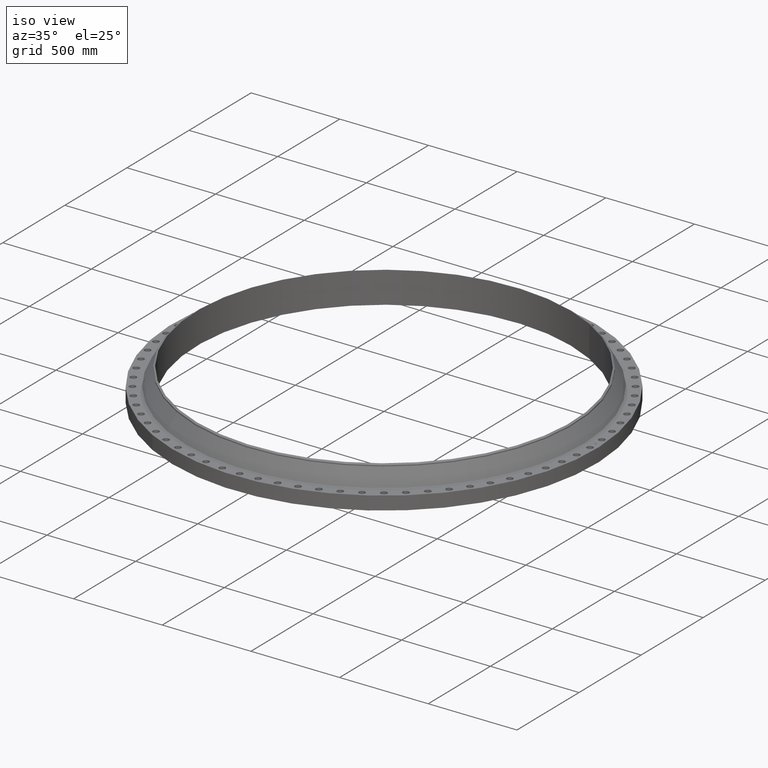
[diagram: clean part render]
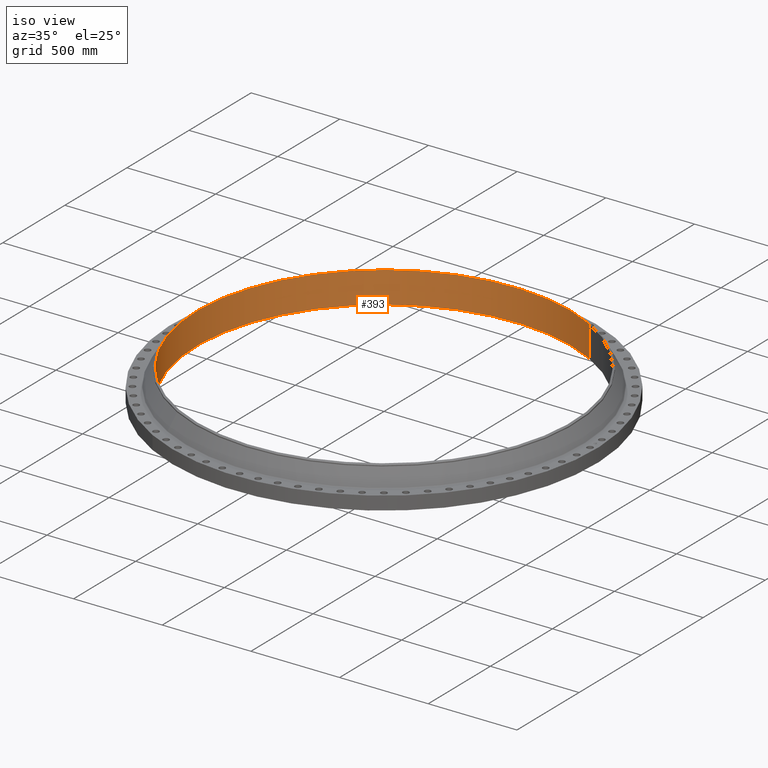
[diagram: tour spotlight — one face highlighted and labeled with its STEP entity id]
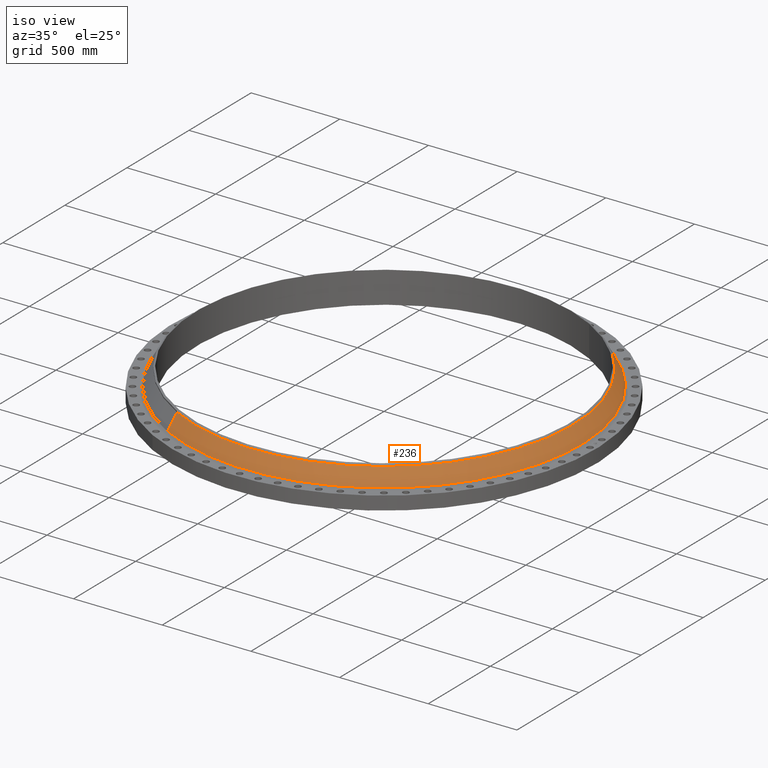
[diagram: tour spotlight — one face highlighted and labeled with its STEP entity id]
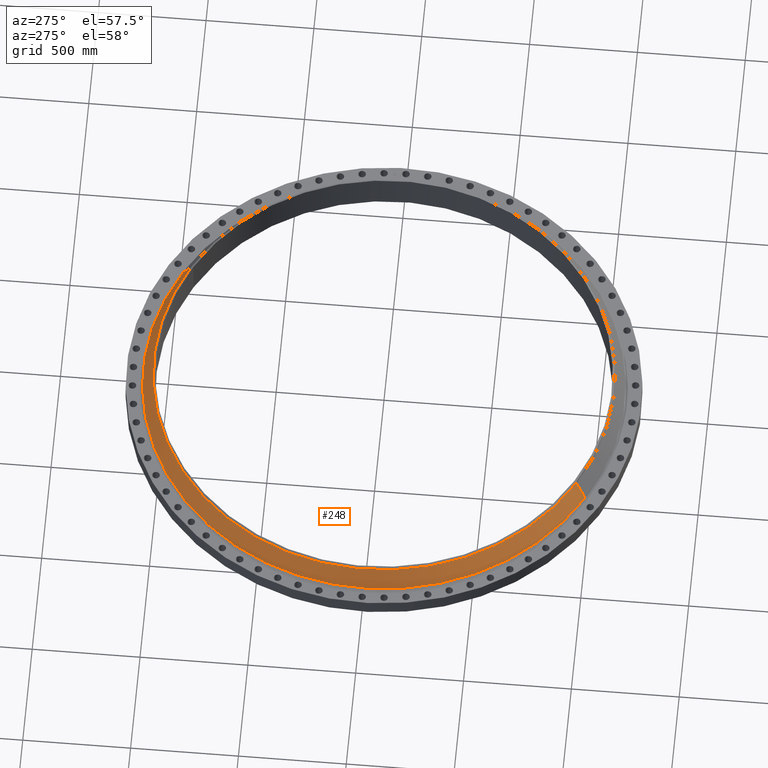
[diagram: tour spotlight — one face highlighted and labeled with its STEP entity id]
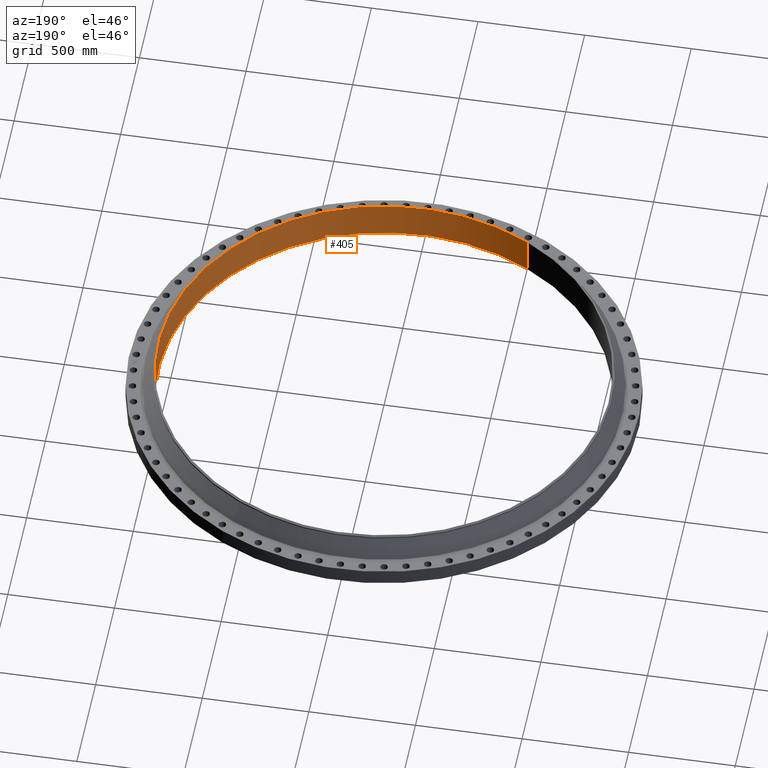
[diagram: tour spotlight — one face highlighted and labeled with its STEP entity id]
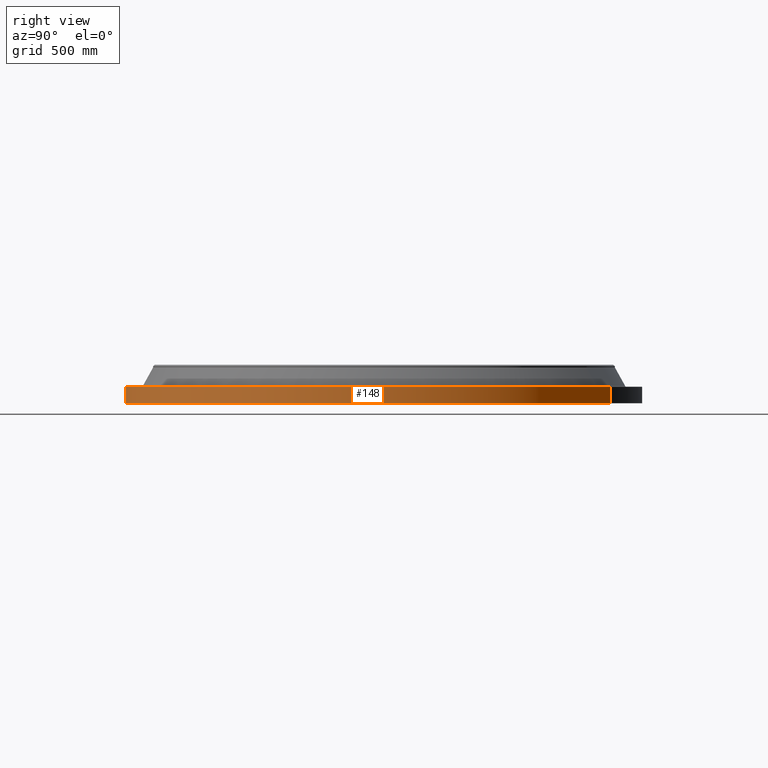
[diagram: tour spotlight — one face highlighted and labeled with its STEP entity id]
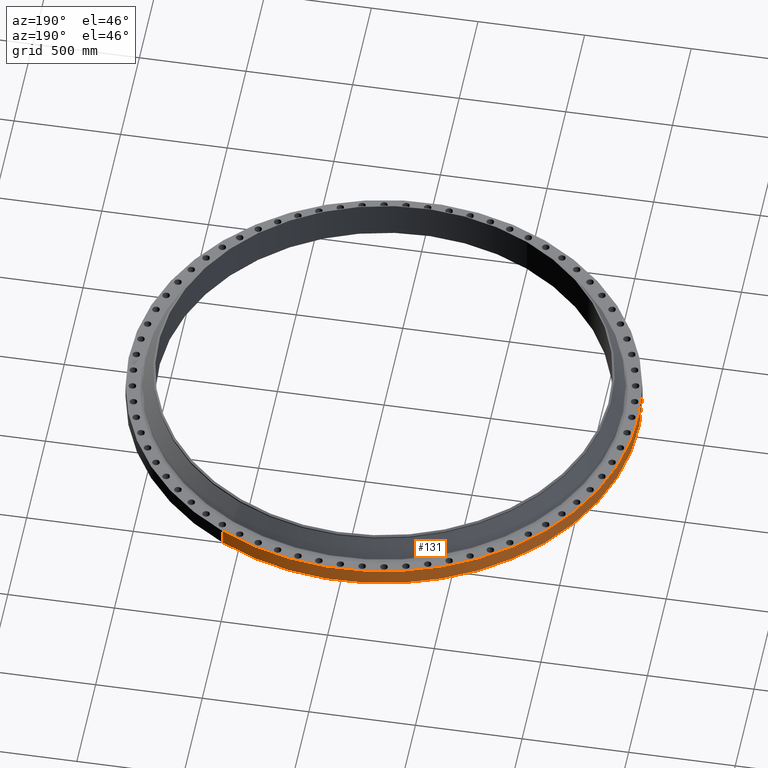
[diagram: tour spotlight — one face highlighted and labeled with its STEP entity id]
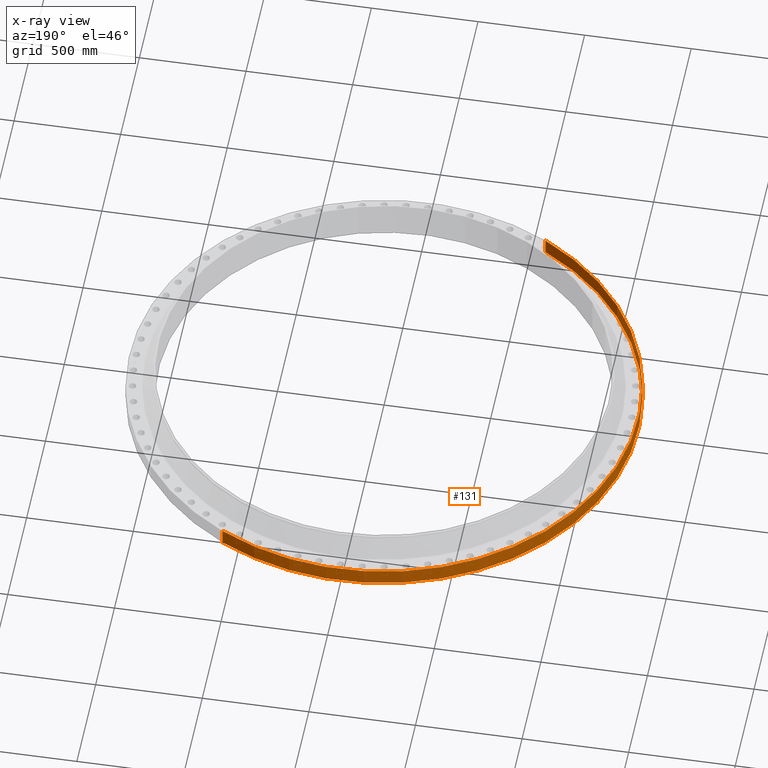
[diagram: x-ray of the same camera — body ghosted, this tour face saturated]
A machine part: a face-by-face anatomy tour. The part has 544 B-rep faces; the first image is the clean iso view, then the 6 largest visible faces are spotlighted one at a time (largest first), each with its STEP entity span.

Face 1 — iso view, entity #393. In plain terms, the highlighted cylindrical surface (partial cylindrical patch) has radius 1057.28 mm, axis along (0, 0, -1).
Definition (entity closure, byte-faithful):
#346=AXIS2_PLACEMENT_3D('Circle Axis2P3D',#344,#345,$) ;
#366=AXIS2_PLACEMENT_3D('Cylinder Axis2P3D',#363,#364,#365) ;
#377=AXIS2_PLACEMENT_3D('Circle Axis2P3D',#375,#376,$) ;
#344=CARTESIAN_POINT('Axis2P3D Location',(0.,1.1189649382E-015,7.00000000003)) ;
#348=CARTESIAN_POINT('Vertex',(-19.9560880445,-36.5293741388,7.00000000003)) ;
#350=CARTESIAN_POINT('Vertex',(19.9560880445,36.5293741388,7.00000000003)) ;
#363=CARTESIAN_POINT('Axis2P3D Location',(0.,0.,3.55000000001)) ;
#368=CARTESIAN_POINT('Line Origine',(-19.9560880445,-36.5293741388,3.50000000001)) ;
#372=CARTESIAN_POINT('Vertex',(-19.9560880445,-36.5293741388,-6.93758261687E-014)) ;
#375=CARTESIAN_POINT('Axis2P3D Location',(0.,0.,-6.93758261687E-014)) ;
#379=CARTESIAN_POINT('Vertex',(19.9560880445,36.5293741388,-6.93758261687E-014)) ;
#382=CARTESIAN_POINT('Line Origine',(19.9560880445,36.5293741388,3.50000000001)) ;
#345=DIRECTION('Axis2P3D Direction',(0.,-0.,-0.0393700787402)) ;
#364=DIRECTION('Axis2P3D Direction',(0.,0.,-0.0393700787402)) ;
#365=DIRECTION('Axis2P3D XDirection',(0.0188750212049,0.0345504945626,0.)) ;
#369=DIRECTION('Vector Direction',(0.,0.,-0.0393700787402)) ;
#376=DIRECTION('Axis2P3D Direction',(0.,0.,-0.0393700787402)) ;
#383=DIRECTION('Vector Direction',(0.,0.,-0.0393700787402)) ;
#370=VECTOR('Line Direction',#369,0.0393700787402) ;
#384=VECTOR('Line Direction',#383,0.0393700787402) ;
#388=ORIENTED_EDGE('',*,*,#374,.T.) ;
#389=ORIENTED_EDGE('',*,*,#381,.T.) ;
#390=ORIENTED_EDGE('',*,*,#386,.F.) ;
#391=ORIENTED_EDGE('',*,*,#352,.F.) ;
#393=ADVANCED_FACE('PartBody',(#392),#367,.F.) ;
#347=CIRCLE('generated circle',#346,41.6250000002) ;
#378=CIRCLE('generated circle',#377,41.6250000002) ;
#367=CYLINDRICAL_SURFACE('generated cylinder',#366,41.6250000002) ;
#352=EDGE_CURVE('',#349,#351,#347,.T.) ;
#374=EDGE_CURVE('',#349,#373,#371,.T.) ;
#381=EDGE_CURVE('',#373,#380,#378,.T.) ;
#386=EDGE_CURVE('',#351,#380,#385,.T.) ;
#387=EDGE_LOOP('',(#388,#389,#390,#391)) ;
#392=FACE_OUTER_BOUND('',#387,.T.) ;
#371=LINE('Line',#368,#370) ;
#385=LINE('Line',#382,#384) ;
#349=VERTEX_POINT('',#348) ;
#351=VERTEX_POINT('',#350) ;
#373=VERTEX_POINT('',#372) ;
#380=VERTEX_POINT('',#379) ;

Face 2 — iso view, entity #236. In plain terms, the highlighted conical surface has half-angle 29.577 deg.
Definition (entity closure, byte-faithful):
#172=AXIS2_PLACEMENT_3D('Circle Axis2P3D',#170,#171,$) ;
#209=AXIS2_PLACEMENT_3D('Cone Axis2P3D',#206,#207,#208) ;
#220=AXIS2_PLACEMENT_3D('Circle Axis2P3D',#218,#219,$) ;
#167=CARTESIAN_POINT('Vertex',(21.0602758688,38.5505763936,3.12660339613)) ;
#170=CARTESIAN_POINT('Axis2P3D Location',(0.,0.,3.12660339613)) ;
#174=CARTESIAN_POINT('Vertex',(-21.0602758688,-38.5505763936,3.12660339613)) ;
#206=CARTESIAN_POINT('Axis2P3D Location',(0.,0.,6.52398984384)) ;
#211=CARTESIAN_POINT('Line Origine',(20.5980742451,37.7045219966,4.82529661998)) ;
#215=CARTESIAN_POINT('Vertex',(20.1358726215,36.8584675995,6.52398984384)) ;
#218=CARTESIAN_POINT('Axis2P3D Location',(0.,0.,6.52398984384)) ;
#222=CARTESIAN_POINT('Vertex',(-20.1358726215,-36.8584675995,6.52398984384)) ;
#225=CARTESIAN_POINT('Line Origine',(-20.5980742451,-37.7045219966,4.82529661998)) ;
#171=DIRECTION('Axis2P3D Direction',(0.,0.,-0.0393700787402)) ;
#207=DIRECTION('Axis2P3D Direction',(0.,0.,-0.0393700787402)) ;
#208=DIRECTION('Axis2P3D XDirection',(-0.0188750212049,-0.0345504945626,0.)) ;
#212=DIRECTION('Vector Direction',(0.00931645405992,0.0170536547666,-0.0342400298314)) ;
#219=DIRECTION('Axis2P3D Direction',(0.,0.,-0.0393700787402)) ;
#226=DIRECTION('Vector Direction',(-0.00931645405992,-0.0170536547666,-0.0342400298314)) ;
#213=VECTOR('Line Direction',#212,0.0393700787402) ;
#227=VECTOR('Line Direction',#226,0.0393700787402) ;
#231=ORIENTED_EDGE('',*,*,#176,.F.) ;
#232=ORIENTED_EDGE('',*,*,#217,.T.) ;
#233=ORIENTED_EDGE('',*,*,#224,.T.) ;
#234=ORIENTED_EDGE('',*,*,#229,.F.) ;
#236=ADVANCED_FACE('PartBody',(#235),#210,.T.) ;
#173=CIRCLE('generated circle',#172,43.9281476954) ;
#221=CIRCLE('generated circle',#220,42.0000000002) ;
#210=CONICAL_SURFACE('Cone',#209,42.0000000002,0.516208704301) ;
#176=EDGE_CURVE('',#168,#175,#173,.T.) ;
#217=EDGE_CURVE('',#168,#216,#214,.F.) ;
#224=EDGE_CURVE('',#216,#223,#221,.T.) ;
#229=EDGE_CURVE('',#175,#223,#228,.F.) ;
#230=EDGE_LOOP('',(#231,#232,#233,#234)) ;
#235=FACE_OUTER_BOUND('',#230,.T.) ;
#214=LINE('Line',#211,#213) ;
#228=LINE('Line',#225,#227) ;
#168=VERTEX_POINT('',#167) ;
#175=VERTEX_POINT('',#174) ;
#216=VERTEX_POINT('',#215) ;
#223=VERTEX_POINT('',#222) ;

Face 3 — auxiliary view, entity #248. In plain terms, the highlighted conical surface has half-angle 29.577 deg.
Definition (entity closure, byte-faithful):
#196=AXIS2_PLACEMENT_3D('Circle Axis2P3D',#194,#195,$) ;
#209=AXIS2_PLACEMENT_3D('Cone Axis2P3D',#206,#207,#208) ;
#239=AXIS2_PLACEMENT_3D('Circle Axis2P3D',#237,#238,$) ;
#167=CARTESIAN_POINT('Vertex',(21.0602758688,38.5505763936,3.12660339613)) ;
#174=CARTESIAN_POINT('Vertex',(-21.0602758688,-38.5505763936,3.12660339613)) ;
#194=CARTESIAN_POINT('Axis2P3D Location',(0.,0.,3.12660339613)) ;
#206=CARTESIAN_POINT('Axis2P3D Location',(0.,0.,6.52398984384)) ;
#211=CARTESIAN_POINT('Line Origine',(20.5980742451,37.7045219966,4.82529661998)) ;
#215=CARTESIAN_POINT('Vertex',(20.1358726215,36.8584675995,6.52398984384)) ;
#222=CARTESIAN_POINT('Vertex',(-20.1358726215,-36.8584675995,6.52398984384)) ;
#225=CARTESIAN_POINT('Line Origine',(-20.5980742451,-37.7045219966,4.82529661998)) ;
#237=CARTESIAN_POINT('Axis2P3D Location',(0.,0.,6.52398984384)) ;
#195=DIRECTION('Axis2P3D Direction',(0.,0.,-0.0393700787402)) ;
#207=DIRECTION('Axis2P3D Direction',(0.,0.,-0.0393700787402)) ;
#208=DIRECTION('Axis2P3D XDirection',(-0.0188750212049,-0.0345504945626,0.)) ;
#212=DIRECTION('Vector Direction',(0.00931645405992,0.0170536547666,-0.0342400298314)) ;
#226=DIRECTION('Vector Direction',(-0.00931645405992,-0.0170536547666,-0.0342400298314)) ;
#238=DIRECTION('Axis2P3D Direction',(0.,0.,-0.0393700787402)) ;
#213=VECTOR('Line Direction',#212,0.0393700787402) ;
#227=VECTOR('Line Direction',#226,0.0393700787402) ;
#243=ORIENTED_EDGE('',*,*,#198,.F.) ;
#244=ORIENTED_EDGE('',*,*,#229,.T.) ;
#245=ORIENTED_EDGE('',*,*,#241,.T.) ;
#246=ORIENTED_EDGE('',*,*,#217,.F.) ;
#248=ADVANCED_FACE('PartBody',(#247),#210,.T.) ;
#197=CIRCLE('generated circle',#196,43.9281476954) ;
#240=CIRCLE('generated circle',#239,42.0000000002) ;
#210=CONICAL_SURFACE('Cone',#209,42.0000000002,0.516208704301) ;
#198=EDGE_CURVE('',#175,#168,#197,.T.) ;
#217=EDGE_CURVE('',#168,#216,#214,.F.) ;
#229=EDGE_CURVE('',#175,#223,#228,.F.) ;
#241=EDGE_CURVE('',#223,#216,#240,.T.) ;
#242=EDGE_LOOP('',(#243,#244,#245,#246)) ;
#247=FACE_OUTER_BOUND('',#242,.T.) ;
#214=LINE('Line',#211,#213) ;
#228=LINE('Line',#225,#227) ;
#168=VERTEX_POINT('',#167) ;
#175=VERTEX_POINT('',#174) ;
#216=VERTEX_POINT('',#215) ;
#223=VERTEX_POINT('',#222) ;

Face 4 — auxiliary view, entity #405. In plain terms, the highlighted cylindrical surface (partial cylindrical patch) has radius 1057.28 mm, axis along (0, 0, -1).
Definition (entity closure, byte-faithful):
#355=AXIS2_PLACEMENT_3D('Circle Axis2P3D',#353,#354,$) ;
#366=AXIS2_PLACEMENT_3D('Cylinder Axis2P3D',#363,#364,#365) ;
#396=AXIS2_PLACEMENT_3D('Circle Axis2P3D',#394,#395,$) ;
#348=CARTESIAN_POINT('Vertex',(-19.9560880445,-36.5293741388,7.00000000003)) ;
#350=CARTESIAN_POINT('Vertex',(19.9560880445,36.5293741388,7.00000000003)) ;
#353=CARTESIAN_POINT('Axis2P3D Location',(-4.47585975282E-015,-3.35689481461E-015,7.00000000003)) ;
#363=CARTESIAN_POINT('Axis2P3D Location',(0.,0.,3.55000000001)) ;
#368=CARTESIAN_POINT('Line Origine',(-19.9560880445,-36.5293741388,3.50000000001)) ;
#372=CARTESIAN_POINT('Vertex',(-19.9560880445,-36.5293741388,-6.93758261687E-014)) ;
#379=CARTESIAN_POINT('Vertex',(19.9560880445,36.5293741388,-6.93758261687E-014)) ;
#382=CARTESIAN_POINT('Line Origine',(19.9560880445,36.5293741388,3.50000000001)) ;
#394=CARTESIAN_POINT('Axis2P3D Location',(0.,0.,-6.93758261687E-014)) ;
#354=DIRECTION('Axis2P3D Direction',(0.,-0.,-0.0393700787402)) ;
#364=DIRECTION('Axis2P3D Direction',(0.,0.,-0.0393700787402)) ;
#365=DIRECTION('Axis2P3D XDirection',(0.0188750212049,0.0345504945626,0.)) ;
#369=DIRECTION('Vector Direction',(0.,0.,-0.0393700787402)) ;
#383=DIRECTION('Vector Direction',(0.,0.,-0.0393700787402)) ;
#395=DIRECTION('Axis2P3D Direction',(0.,0.,-0.0393700787402)) ;
#370=VECTOR('Line Direction',#369,0.0393700787402) ;
#384=VECTOR('Line Direction',#383,0.0393700787402) ;
#400=ORIENTED_EDGE('',*,*,#386,.T.) ;
#401=ORIENTED_EDGE('',*,*,#398,.T.) ;
#402=ORIENTED_EDGE('',*,*,#374,.F.) ;
#403=ORIENTED_EDGE('',*,*,#357,.F.) ;
#405=ADVANCED_FACE('PartBody',(#404),#367,.F.) ;
#356=CIRCLE('generated circle',#355,41.6250000002) ;
#397=CIRCLE('generated circle',#396,41.6250000002) ;
#367=CYLINDRICAL_SURFACE('generated cylinder',#366,41.6250000002) ;
#357=EDGE_CURVE('',#351,#349,#356,.T.) ;
#374=EDGE_CURVE('',#349,#373,#371,.T.) ;
#386=EDGE_CURVE('',#351,#380,#385,.T.) ;
#398=EDGE_CURVE('',#380,#373,#397,.T.) ;
#399=EDGE_LOOP('',(#400,#401,#402,#403)) ;
#404=FACE_OUTER_BOUND('',#399,.T.) ;
#371=LINE('Line',#368,#370) ;
#385=LINE('Line',#382,#384) ;
#349=VERTEX_POINT('',#348) ;
#351=VERTEX_POINT('',#350) ;
#373=VERTEX_POINT('',#372) ;
#380=VERTEX_POINT('',#379) ;

Face 5 — right view, entity #148. In plain terms, the highlighted cylindrical surface (partial cylindrical patch) has radius 1193.8 mm, axis along (0, 0, -1).
Definition (entity closure, byte-faithful):
#95=AXIS2_PLACEMENT_3D('Cylinder Axis2P3D',#92,#93,#94) ;
#134=AXIS2_PLACEMENT_3D('Circle Axis2P3D',#132,#133,$) ;
#139=AXIS2_PLACEMENT_3D('Circle Axis2P3D',#137,#138,$) ;
#92=CARTESIAN_POINT('Axis2P3D Location',(0.,0.,3.55000000001)) ;
#101=CARTESIAN_POINT('Vertex',(-22.5330003145,-41.246380409,5.59482469102E-015)) ;
#103=CARTESIAN_POINT('Vertex',(22.5330003145,41.246380409,5.59482469102E-015)) ;
#106=CARTESIAN_POINT('Line Origine',(-22.5330003145,-41.246380409,1.50000000001)) ;
#110=CARTESIAN_POINT('Vertex',(-22.5330003145,-41.246380409,3.00000000001)) ;
#117=CARTESIAN_POINT('Vertex',(22.5330003145,41.246380409,3.00000000001)) ;
#120=CARTESIAN_POINT('Line Origine',(22.5330003145,41.246380409,1.50000000001)) ;
#132=CARTESIAN_POINT('Axis2P3D Location',(0.,0.,5.59482469102E-015)) ;
#137=CARTESIAN_POINT('Axis2P3D Location',(0.,0.,3.00000000001)) ;
#93=DIRECTION('Axis2P3D Direction',(0.,0.,-0.0393700787402)) ;
#94=DIRECTION('Axis2P3D XDirection',(0.0188750212049,0.0345504945626,0.)) ;
#107=DIRECTION('Vector Direction',(0.,0.,-0.0393700787402)) ;
#121=DIRECTION('Vector Direction',(0.,0.,-0.0393700787402)) ;
#133=DIRECTION('Axis2P3D Direction',(0.,0.,-0.0393700787402)) ;
#138=DIRECTION('Axis2P3D Direction',(0.,0.,-0.0393700787402)) ;
#108=VECTOR('Line Direction',#107,0.0393700787402) ;
#122=VECTOR('Line Direction',#121,0.0393700787402) ;
#143=ORIENTED_EDGE('',*,*,#136,.F.) ;
#144=ORIENTED_EDGE('',*,*,#124,.T.) ;
#145=ORIENTED_EDGE('',*,*,#141,.T.) ;
#146=ORIENTED_EDGE('',*,*,#112,.F.) ;
#148=ADVANCED_FACE('PartBody',(#147),#96,.T.) ;
#135=CIRCLE('generated circle',#134,47.0000000002) ;
#140=CIRCLE('generated circle',#139,47.0000000002) ;
#96=CYLINDRICAL_SURFACE('generated cylinder',#95,47.0000000002) ;
#112=EDGE_CURVE('',#102,#111,#109,.F.) ;
#124=EDGE_CURVE('',#104,#118,#123,.F.) ;
#136=EDGE_CURVE('',#104,#102,#135,.T.) ;
#141=EDGE_CURVE('',#118,#111,#140,.T.) ;
#142=EDGE_LOOP('',(#143,#144,#145,#146)) ;
#147=FACE_OUTER_BOUND('',#142,.T.) ;
#109=LINE('Line',#106,#108) ;
#123=LINE('Line',#120,#122) ;
#102=VERTEX_POINT('',#101) ;
#104=VERTEX_POINT('',#103) ;
#111=VERTEX_POINT('',#110) ;
#118=VERTEX_POINT('',#117) ;

Face 6 — auxiliary view, entity #131. An x-ray twin of the same camera follows (body ghosted, this face saturated) — the face is partly hidden behind the body. In plain terms, the highlighted cylindrical surface (partial cylindrical patch) has radius 1193.8 mm, axis along (0, 0, -1).
Definition (entity closure, byte-faithful):
#95=AXIS2_PLACEMENT_3D('Cylinder Axis2P3D',#92,#93,#94) ;
#99=AXIS2_PLACEMENT_3D('Circle Axis2P3D',#97,#98,$) ;
#115=AXIS2_PLACEMENT_3D('Circle Axis2P3D',#113,#114,$) ;
#92=CARTESIAN_POINT('Axis2P3D Location',(0.,0.,3.55000000001)) ;
#97=CARTESIAN_POINT('Axis2P3D Location',(0.,0.,5.59482469102E-015)) ;
#101=CARTESIAN_POINT('Vertex',(-22.5330003145,-41.246380409,5.59482469102E-015)) ;
#103=CARTESIAN_POINT('Vertex',(22.5330003145,41.246380409,5.59482469102E-015)) ;
#106=CARTESIAN_POINT('Line Origine',(-22.5330003145,-41.246380409,1.50000000001)) ;
#110=CARTESIAN_POINT('Vertex',(-22.5330003145,-41.246380409,3.00000000001)) ;
#113=CARTESIAN_POINT('Axis2P3D Location',(0.,0.,3.00000000001)) ;
#117=CARTESIAN_POINT('Vertex',(22.5330003145,41.246380409,3.00000000001)) ;
#120=CARTESIAN_POINT('Line Origine',(22.5330003145,41.246380409,1.50000000001)) ;
#93=DIRECTION('Axis2P3D Direction',(0.,0.,-0.0393700787402)) ;
#94=DIRECTION('Axis2P3D XDirection',(0.0188750212049,0.0345504945626,0.)) ;
#98=DIRECTION('Axis2P3D Direction',(0.,0.,-0.0393700787402)) ;
#107=DIRECTION('Vector Direction',(0.,0.,-0.0393700787402)) ;
#114=DIRECTION('Axis2P3D Direction',(0.,0.,-0.0393700787402)) ;
#121=DIRECTION('Vector Direction',(0.,0.,-0.0393700787402)) ;
#108=VECTOR('Line Direction',#107,0.0393700787402) ;
#122=VECTOR('Line Direction',#121,0.0393700787402) ;
#126=ORIENTED_EDGE('',*,*,#105,.F.) ;
#127=ORIENTED_EDGE('',*,*,#112,.T.) ;
#128=ORIENTED_EDGE('',*,*,#119,.T.) ;
#129=ORIENTED_EDGE('',*,*,#124,.F.) ;
#131=ADVANCED_FACE('PartBody',(#130),#96,.T.) ;
#100=CIRCLE('generated circle',#99,47.0000000002) ;
#116=CIRCLE('generated circle',#115,47.0000000002) ;
#96=CYLINDRICAL_SURFACE('generated cylinder',#95,47.0000000002) ;
#105=EDGE_CURVE('',#102,#104,#100,.T.) ;
#112=EDGE_CURVE('',#102,#111,#109,.F.) ;
#119=EDGE_CURVE('',#111,#118,#116,.T.) ;
#124=EDGE_CURVE('',#104,#118,#123,.F.) ;
#125=EDGE_LOOP('',(#126,#127,#128,#129)) ;
#130=FACE_OUTER_BOUND('',#125,.T.) ;
#109=LINE('Line',#106,#108) ;
#123=LINE('Line',#120,#122) ;
#102=VERTEX_POINT('',#101) ;
#104=VERTEX_POINT('',#103) ;
#111=VERTEX_POINT('',#110) ;
#118=VERTEX_POINT('',#117) ;